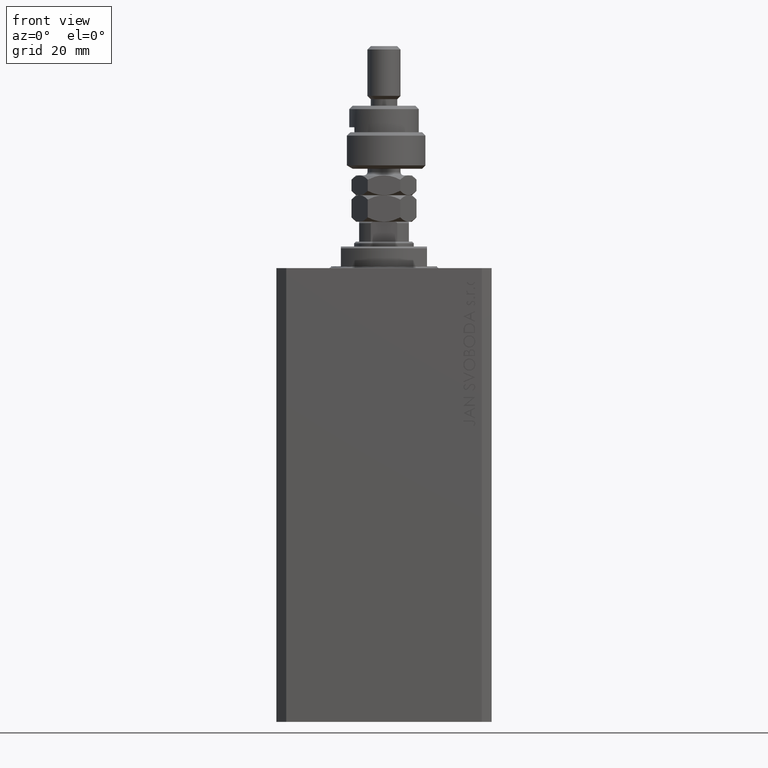
[diagram: clean part render]
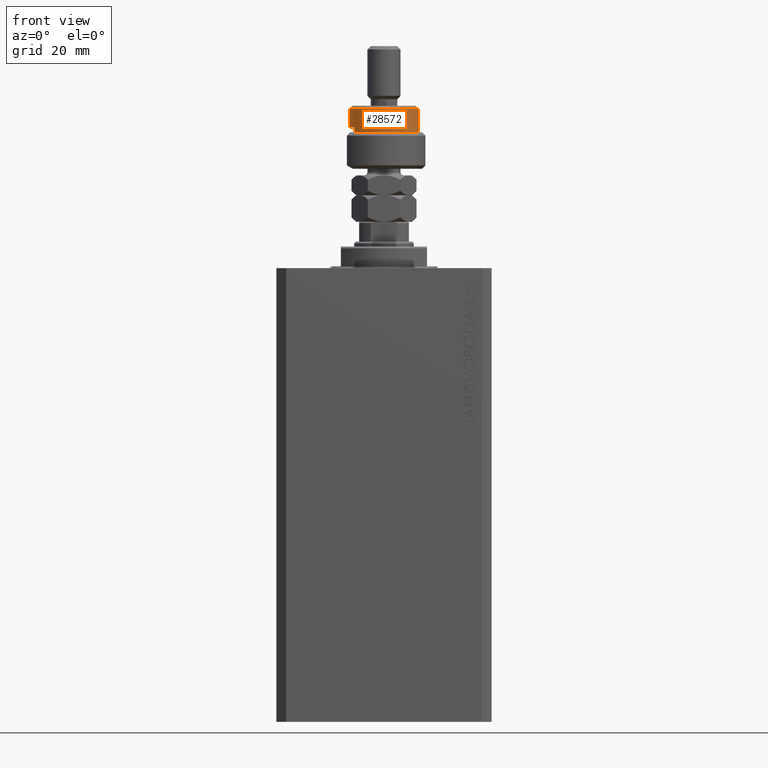
[diagram: same view with one face highlighted and labeled with its STEP entity id]
A machine part, front view. The second image highlights one B-rep face of the part: STEP entity #28572.
In plain terms, the highlighted cylindrical surface (edge-blend (fillet) strip) has radius 10.5 mm, axis along (-0, -0, -1).
Its self-contained STEP definition (entity closure, byte-faithful):
#31 = CIRCLE ( 'NONE', #38011, 10.50000000000000000 ) ;
#730 = VERTEX_POINT ( 'NONE', #33265 ) ;
#1250 = DIRECTION ( 'NONE',  ( -1.000000000000000000, 0.000000000000000000, 0.000000000000000000 ) ) ;
#4220 = DIRECTION ( 'NONE',  ( 1.000000000000000000, 0.000000000000000000, 0.000000000000000000 ) ) ;
#4283 = DIRECTION ( 'NONE',  ( -0.000000000000000000, -0.000000000000000000, -1.000000000000000000 ) ) ;
#4965 = DIRECTION ( 'NONE',  ( 0.000000000000000000, 0.000000000000000000, -1.000000000000000000 ) ) ;
#5423 = VECTOR ( 'NONE', #4283, 1000.000000000000000 ) ;
#6405 = ORIENTED_EDGE ( 'NONE', *, *, #40866, .T. ) ;
#8413 = VERTEX_POINT ( 'NONE', #33444 ) ;
#8530 = DIRECTION ( 'NONE',  ( 1.000000000000000000, 0.000000000000000000, 0.000000000000000000 ) ) ;
#9572 = AXIS2_PLACEMENT_3D ( 'NONE', #35164, #15917, #31365 ) ;
#9846 = VECTOR ( 'NONE', #30958, 1000.000000000000000 ) ;
#13592 = DIRECTION ( 'NONE',  ( 0.000000000000000000, 0.000000000000000000, -1.000000000000000000 ) ) ;
#14955 = LINE ( 'NONE', #41816, #46894 ) ;
#15160 = CARTESIAN_POINT ( 'NONE',  ( -10.50000000000000000, 0.000000000000000000, 12.50000000000000000 ) ) ;
#15566 = AXIS2_PLACEMENT_3D ( 'NONE', #28519, #39424, #8530 ) ;
#15917 = DIRECTION ( 'NONE',  ( -0.000000000000000000, -0.000000000000000000, -1.000000000000000000 ) ) ;
#16166 = CYLINDRICAL_SURFACE ( 'NONE', #9572, 10.50000000000000000 ) ;
#19806 = VERTEX_POINT ( 'NONE', #32385 ) ;
#20013 = EDGE_CURVE ( 'NONE', #35883, #46882, #34123, .T. ) ;
#20311 = LINE ( 'NONE', #34751, #9846 ) ;
#20518 = EDGE_CURVE ( 'NONE', #730, #35883, #28828, .T. ) ;
#21200 = CIRCLE ( 'NONE', #15566, 10.50000000000000000 ) ;
#21285 = ORIENTED_EDGE ( 'NONE', *, *, #20518, .T. ) ;
#21417 = ORIENTED_EDGE ( 'NONE', *, *, #20013, .T. ) ;
#24007 = FACE_OUTER_BOUND ( 'NONE', #44272, .T. ) ;
#24467 = CARTESIAN_POINT ( 'NONE',  ( -8.944271909999159220, -5.500000000000000000, 11.00000000000000000 ) ) ;
#25642 = EDGE_CURVE ( 'NONE', #8413, #46882, #31, .T. ) ;
#27420 = CARTESIAN_POINT ( 'NONE',  ( -10.50000000000000000, 0.000000000000000000, 17.99999999999999645 ) ) ;
#28519 = CARTESIAN_POINT ( 'NONE',  ( 0.000000000000000000, 0.000000000000000000, 11.00000000000000000 ) ) ;
#28572 = ADVANCED_FACE ( 'NONE', ( #24007 ), #16166, .T. ) ;
#28828 = CIRCLE ( 'NONE', #36904, 10.50000000000000000 ) ;
#30958 = DIRECTION ( 'NONE',  ( -0.000000000000000000, -0.000000000000000000, -1.000000000000000000 ) ) ;
#31268 = ORIENTED_EDGE ( 'NONE', *, *, #40236, .F. ) ;
#31365 = DIRECTION ( 'NONE',  ( -1.000000000000000000, 0.000000000000000000, 0.000000000000000000 ) ) ;
#32385 = CARTESIAN_POINT ( 'NONE',  ( 10.50000000000000000, 1.285879139104720831E-15, 11.00000000000000000 ) ) ;
#33265 = CARTESIAN_POINT ( 'NONE',  ( 10.50000000000000000, 1.285879139104720831E-15, 17.99999999999999645 ) ) ;
#33444 = CARTESIAN_POINT ( 'NONE',  ( -8.944271909999159220, -5.500000000000000000, 12.50000000000000000 ) ) ;
#34123 = LINE ( 'NONE', #37926, #5423 ) ;
#34751 = CARTESIAN_POINT ( 'NONE',  ( 10.50000000000000000, 1.285879139104720831E-15, 19.00000000000000000 ) ) ;
#35164 = CARTESIAN_POINT ( 'NONE',  ( 0.000000000000000000, 0.000000000000000000, 19.00000000000000000 ) ) ;
#35245 = VERTEX_POINT ( 'NONE', #24467 ) ;
#35741 = ORIENTED_EDGE ( 'NONE', *, *, #36150, .T. ) ;
#35883 = VERTEX_POINT ( 'NONE', #27420 ) ;
#36150 = EDGE_CURVE ( 'NONE', #8413, #35245, #14955, .T. ) ;
#36730 = ORIENTED_EDGE ( 'NONE', *, *, #25642, .F. ) ;
#36904 = AXIS2_PLACEMENT_3D ( 'NONE', #39631, #4965, #4220 ) ;
#37926 = CARTESIAN_POINT ( 'NONE',  ( -10.50000000000000000, 0.000000000000000000, 19.00000000000000000 ) ) ;
#38011 = AXIS2_PLACEMENT_3D ( 'NONE', #40688, #13592, #1250 ) ;
#39424 = DIRECTION ( 'NONE',  ( 0.000000000000000000, 0.000000000000000000, 1.000000000000000000 ) ) ;
#39631 = CARTESIAN_POINT ( 'NONE',  ( 0.000000000000000000, 0.000000000000000000, 17.99999999999999645 ) ) ;
#40236 = EDGE_CURVE ( 'NONE', #730, #19806, #20311, .T. ) ;
#40688 = CARTESIAN_POINT ( 'NONE',  ( 0.000000000000000000, 0.000000000000000000, 12.50000000000000000 ) ) ;
#40866 = EDGE_CURVE ( 'NONE', #35245, #19806, #21200, .T. ) ;
#41816 = CARTESIAN_POINT ( 'NONE',  ( -8.944271909999159220, -5.500000000000000000, 19.00000000000000000 ) ) ;
#44272 = EDGE_LOOP ( 'NONE', ( #31268, #21285, #21417, #36730, #35741, #6405 ) ) ;
#46882 = VERTEX_POINT ( 'NONE', #15160 ) ;
#46894 = VECTOR ( 'NONE', #49374, 1000.000000000000000 ) ;
#49374 = DIRECTION ( 'NONE',  ( -0.000000000000000000, -0.000000000000000000, -1.000000000000000000 ) ) ;